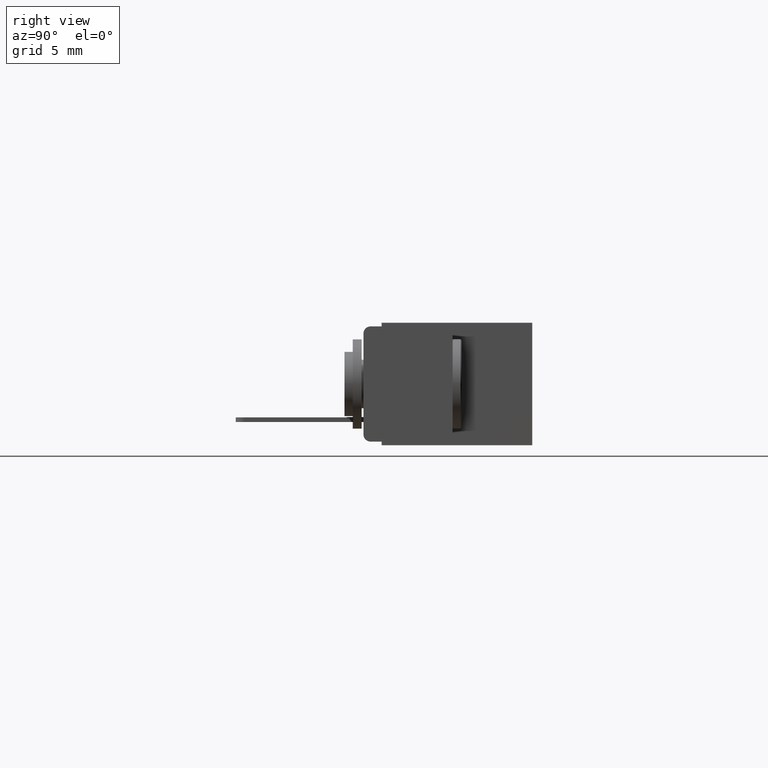
[diagram: clean part render]
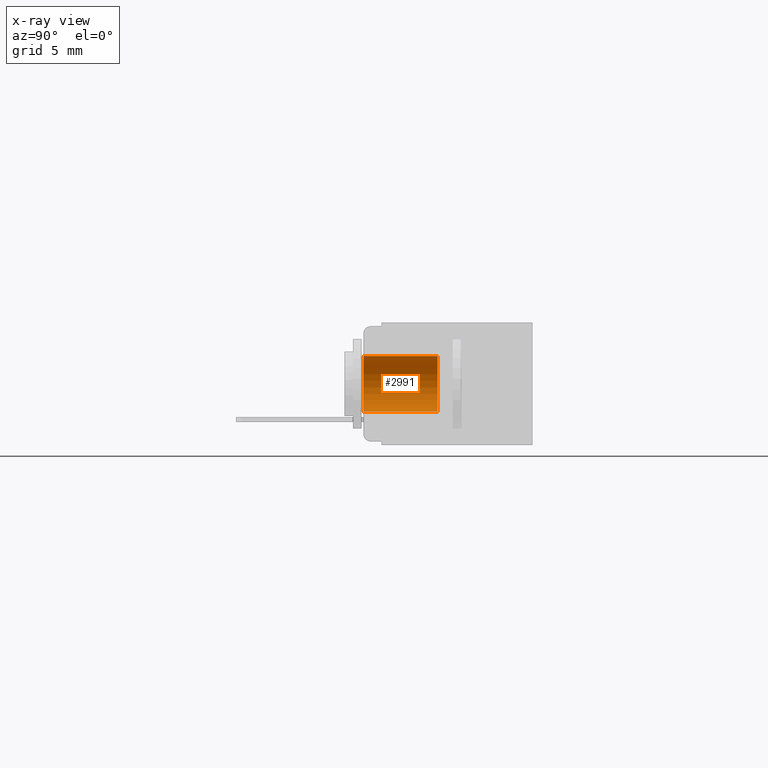
[diagram: x-ray — body ghosted, one internal face saturated and labeled with its STEP entity id]
A machine part, right view, then the same camera in x-ray: the body is ghosted and one INTERNAL B-rep face — a face not visible from any outside direction — is saturated and labeled: STEP entity #2991.
In plain terms, the highlighted cylindrical surface (edge-blend (fillet) strip) has radius 1.9812 mm, axis along (-0, -1, -0).
Its self-contained STEP definition (entity closure, byte-faithful):
#661 = ORIENTED_EDGE ( 'NONE', *, *, #8445, .F. ) ;
#692 = ORIENTED_EDGE ( 'NONE', *, *, #8431, .F. ) ;
#702 = AXIS2_PLACEMENT_3D ( 'NONE', #9674, #5039, #10174 ) ;
#727 = AXIS2_PLACEMENT_3D ( 'NONE', #1943, #7719, #2816 ) ;
#1031 = LINE ( 'NONE', #7367, #5650 ) ;
#1396 = CIRCLE ( 'NONE', #727, 0.07800000000000008300 ) ;
#1458 = ORIENTED_EDGE ( 'NONE', *, *, #8434, .T. ) ;
#1540 = DIRECTION ( 'NONE',  ( -0.0000000000000000000, -1.000000000000000000, -0.0000000000000000000 ) ) ;
#1943 = CARTESIAN_POINT ( 'NONE',  ( 1.686999999999999800, 0.2079999999999999300, -0.1714999999999999600 ) ) ;
#2137 = CARTESIAN_POINT ( 'NONE',  ( 1.686999999999999800, 0.4729999999999999800, -0.1714999999999999600 ) ) ;
#2431 = DIRECTION ( 'NONE',  ( -0.0000000000000000000, -1.000000000000000000, -0.0000000000000000000 ) ) ;
#2816 = DIRECTION ( 'NONE',  ( 0.0000000000000000000, 0.0000000000000000000, 1.000000000000000000 ) ) ;
#2991 = ADVANCED_FACE ( 'NONE', ( #7165 ), #7144, .F. ) ;
#3460 = LINE ( 'NONE', #8169, #5432 ) ;
#3496 = AXIS2_PLACEMENT_3D ( 'NONE', #2137, #4301, #10085 ) ;
#3563 = VERTEX_POINT ( 'NONE', #5780 ) ;
#4301 = DIRECTION ( 'NONE',  ( -0.0000000000000000000, -1.000000000000000000, -0.0000000000000000000 ) ) ;
#4340 = VERTEX_POINT ( 'NONE', #8706 ) ;
#4445 = EDGE_LOOP ( 'NONE', ( #692, #1458, #6082, #661 ) ) ;
#4774 = VERTEX_POINT ( 'NONE', #7582 ) ;
#5039 = DIRECTION ( 'NONE',  ( 0.0000000000000000000, -1.000000000000000000, 0.0000000000000000000 ) ) ;
#5432 = VECTOR ( 'NONE', #1540, 39.37007874015748100 ) ;
#5650 = VECTOR ( 'NONE', #2431, 39.37007874015748100 ) ;
#5780 = CARTESIAN_POINT ( 'NONE',  ( 1.686999999999999800, 0.2079999999999999300, -0.2495000000000000300 ) ) ;
#6082 = ORIENTED_EDGE ( 'NONE', *, *, #8441, .T. ) ;
#6243 = VERTEX_POINT ( 'NONE', #10075 ) ;
#7144 = CYLINDRICAL_SURFACE ( 'NONE', #3496, 0.07800000000000006900 ) ;
#7165 = FACE_OUTER_BOUND ( 'NONE', #4445, .T. ) ;
#7367 = CARTESIAN_POINT ( 'NONE',  ( 1.686999999999999800, 0.4729999999999999800, -0.09349999999999988900 ) ) ;
#7582 = CARTESIAN_POINT ( 'NONE',  ( 1.686999999999999800, 0.0000000000000000000, -0.2495000000000000300 ) ) ;
#7719 = DIRECTION ( 'NONE',  ( -0.0000000000000000000, -1.000000000000000000, -0.0000000000000000000 ) ) ;
#8047 = CIRCLE ( 'NONE', #702, 0.07800000000000008300 ) ;
#8169 = CARTESIAN_POINT ( 'NONE',  ( 1.686999999999999800, 0.4729999999999999800, -0.2495000000000000300 ) ) ;
#8431 = EDGE_CURVE ( 'NONE', #4340, #3563, #1396, .T. ) ;
#8434 = EDGE_CURVE ( 'NONE', #4340, #6243, #1031, .T. ) ;
#8441 = EDGE_CURVE ( 'NONE', #6243, #4774, #8047, .T. ) ;
#8445 = EDGE_CURVE ( 'NONE', #3563, #4774, #3460, .T. ) ;
#8706 = CARTESIAN_POINT ( 'NONE',  ( 1.686999999999999800, 0.2079999999999999300, -0.09349999999999988900 ) ) ;
#9674 = CARTESIAN_POINT ( 'NONE',  ( 1.686999999999999800, 0.0000000000000000000, -0.1714999999999999600 ) ) ;
#10075 = CARTESIAN_POINT ( 'NONE',  ( 1.686999999999999800, 0.0000000000000000000, -0.09349999999999988900 ) ) ;
#10085 = DIRECTION ( 'NONE',  ( 0.0000000000000000000, 0.0000000000000000000, -1.000000000000000000 ) ) ;
#10174 = DIRECTION ( 'NONE',  ( 0.0000000000000000000, 0.0000000000000000000, 1.000000000000000000 ) ) ;